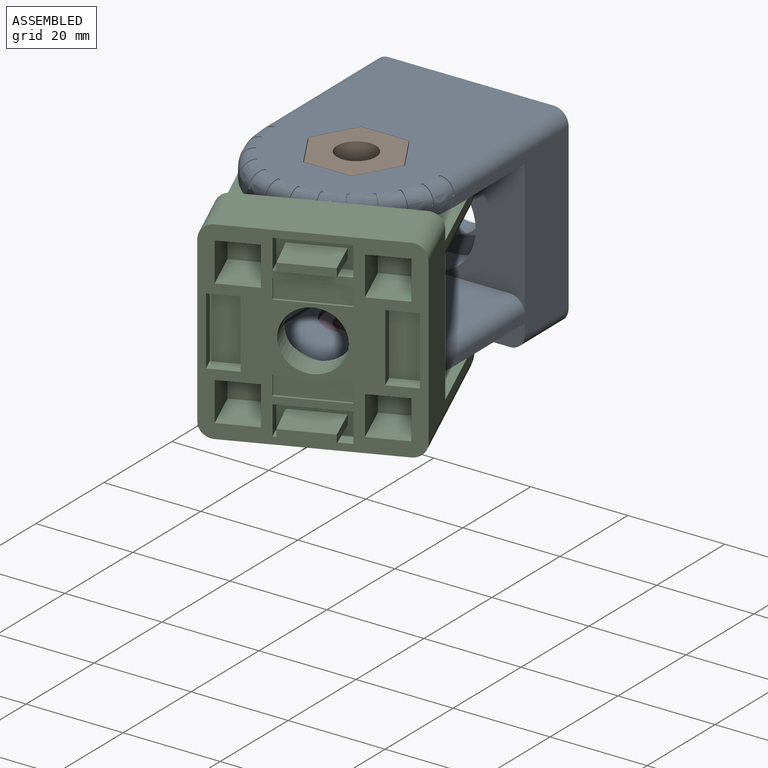
[diagram: assembled view]
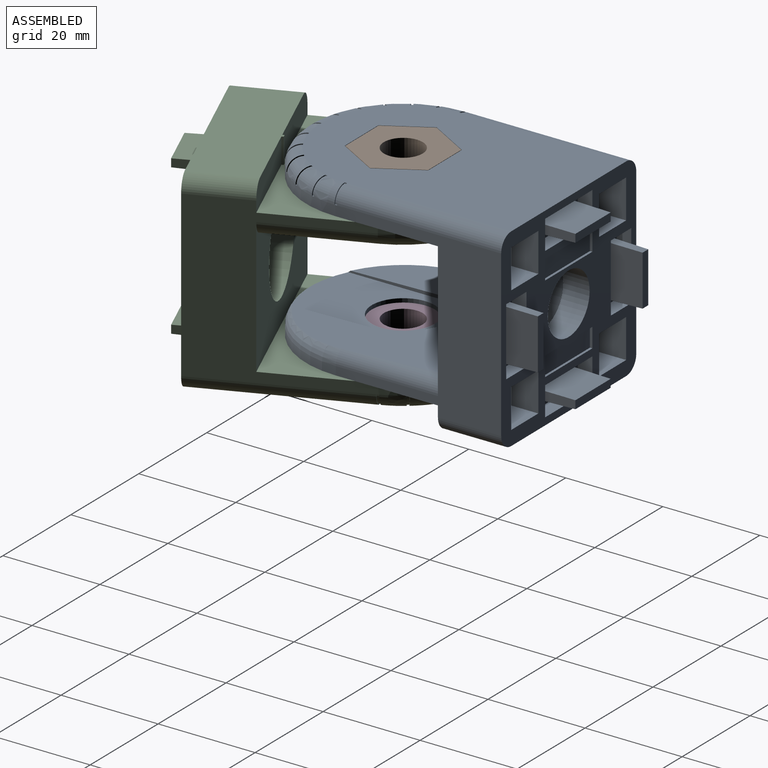
[diagram: assembled view, second angle]
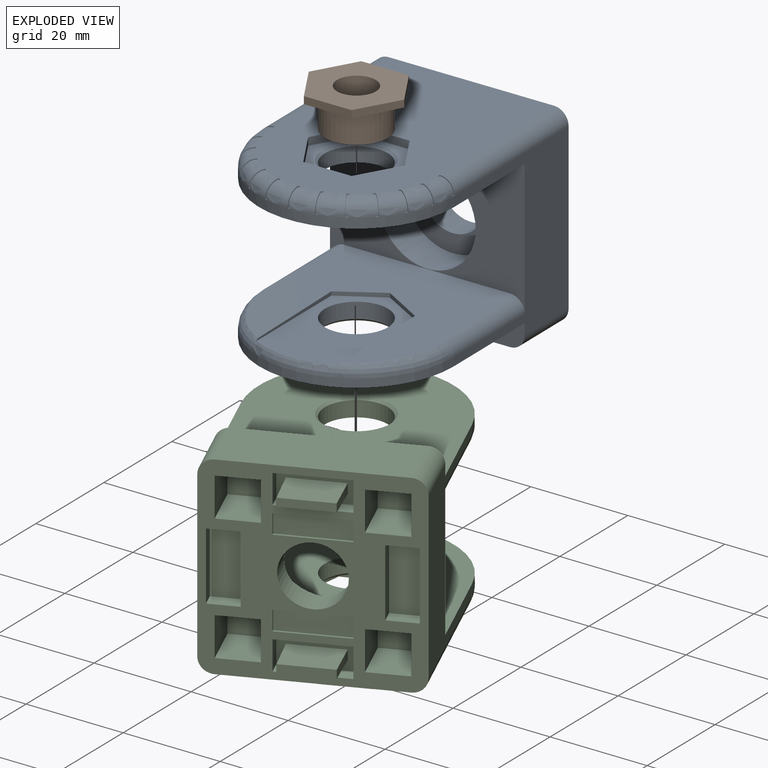
[diagram: exploded view]
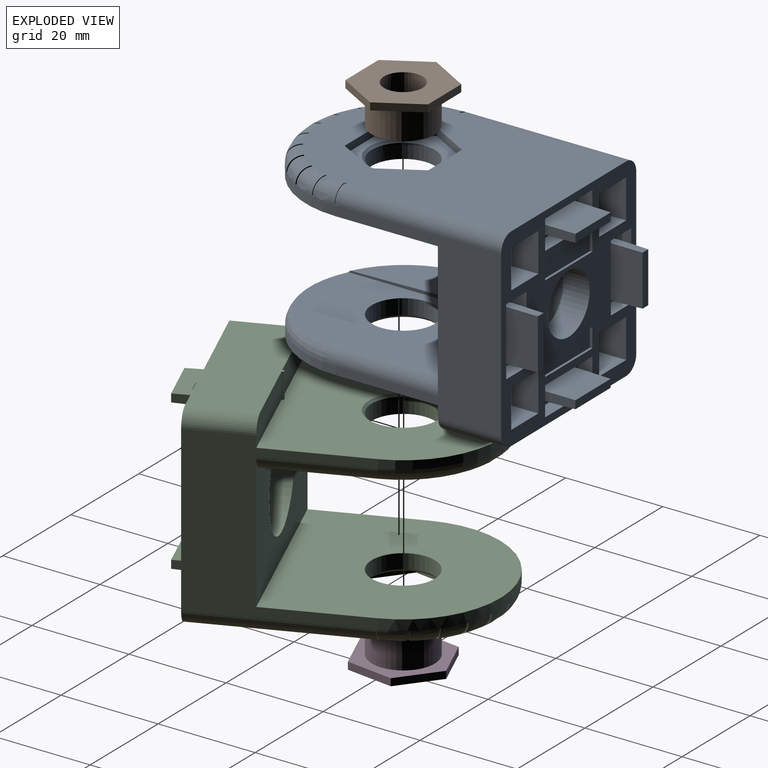
[diagram: exploded view, second angle]
ASSEMBLY  parts=4 mates=3
PART A: 189 faces, bbox 59.3x59.3x40.2 mm
  f0: plane 10.43x1.18mm, normal (0.71,-0.71,0), area 17.4mm2, adj f11,f12,f13,f14
  f1: plane 7.38x7.38mm, normal (0.71,-0.71,0), area 17.4mm2, adj f15,f16,f17,f18
  f2: plane 10.43x1.18mm, normal (0.71,-0.71,0), area 17.4mm2, adj f19,f20,f21,f22
  f3: plane 7.38x7.38mm, normal (0.71,-0.71,0), area 17.4mm2, adj f23,f24,f25,f26
  f4: plane 5.25x0.5mm, normal (-0.71,0.71,0), area 3.7mm2, adj f27,f28,f49,f126
  f5: cylinder r=6.5mm len=13mm, axis (0,0,1), area 130.7mm2, adj f6,f29
  f6: plane 27.87x27.87mm, normal (0,0,1), area 315.6mm2, adj f5,f7,f8,f9,f10,f30
  f7: plane 9.59x2.57mm, normal (-0.26,0.97,0), area 8.1mm2, adj f6,f8,f10,f32
  f8: plane 9.59x2.57mm, normal (-0.97,0.26,0), area 8.1mm2, adj f6,f7,f9,f32
  f9: plane 15.72x15.72mm, normal (-0.71,-0.71,0), area 12.7mm2, adj f6,f8,f30,f32
  f10: plane 15.72x15.72mm, normal (0.71,0.71,0), area 12.7mm2, adj f6,f7,f30,f32
  f11: plane 6.94x6.94mm, normal (0.01,-0.01,1), area 14.5mm2, adj f0,f12,f14,f41
  f12: plane 10.71x5.76mm, normal (-0.69,-0.72,0), area 84.6mm2, adj f0,f11,f13,f41
  f13: plane 6.94x6.94mm, normal (0.01,-0.01,-1), area 14.5mm2, adj f0,f12,f14,f41
  f14: plane 10.71x5.76mm, normal (0.72,0.69,0), area 84.6mm2, adj f0,f11,f13,f41
  f15: plane 5.76x5.56mm, normal (-0.69,-0.72,0), area 14.5mm2, adj f1,f16,f18,f42
  f16: plane 13.13x13.13mm, normal (0.01,-0.01,-1), area 84.6mm2, adj f1,f15,f17,f42
  f17: plane 5.76x5.56mm, normal (0.72,0.69,0), area 14.5mm2, adj f1,f16,f18,f42
  f18: plane 13.13x13.13mm, normal (0.01,-0.01,1), area 84.6mm2, adj f1,f15,f17,f42
  f19: plane 6.94x6.94mm, normal (0.01,-0.01,-1), area 14.5mm2, adj f2,f20,f22,f43
  f20: plane 10.71x5.76mm, normal (0.72,0.69,0), area 84.6mm2, adj f2,f19,f21,f43
  f21: plane 6.94x6.94mm, normal (0.01,-0.01,1), area 14.5mm2, adj f2,f20,f22,f43
  f22: plane 10.71x5.76mm, normal (-0.69,-0.72,0), area 84.6mm2, adj f2,f19,f21,f43
  f23: plane 5.76x5.56mm, normal (0.72,0.69,0), area 14.5mm2, adj f3,f24,f26,f44
  f24: plane 13.13x13.13mm, normal (0.01,-0.01,1), area 84.6mm2, adj f3,f23,f25,f44
  f25: plane 5.76x5.56mm, normal (-0.69,-0.72,0), area 14.5mm2, adj f3,f24,f26,f44
  f26: plane 13.13x13.13mm, normal (0.01,-0.01,-1), area 84.6mm2, adj f3,f23,f25,f44
  f27: plane 5.25x0.28mm, normal (-0.71,-0.71,0), area 2.1mm2, adj f4,f47,f49,f126
  f28: plane 5.25x0.28mm, normal (0.71,0.71,0), area 2.1mm2, adj f4,f48,f49,f126
  f29: cone r=7mm half-angle=45deg, axis (0,0,-1), area 30mm2, adj f5,f49
  f30: revolved ~34.14x34.14mm, area 166.3mm2, adj f6,f9,f10,f32,f46,f50,f51
  f31: cylinder r=9.93mm len=19.87mm, axis (-0.71,0.71,0), area 472.1mm2, adj f45,f52
  f32: plane 45.88x45.88mm, normal (-0.01,0.01,1), area 865.9mm2, adj f7,f8,f9,f10,f30,f46,f51,f52
  f33: cylinder r=6.5mm len=13mm, axis (0,0,-1), area 122.5mm2, adj f34,f66
  f34: cone r=7mm half-angle=45deg, axis (0,0,1), area 30mm2, adj f33,f80
  f35: plane 9.9x9.9mm, normal (0.71,-0.71,0), area 56mm2, adj f82,f83,f84,f85
  f36: plane 9.9x9.9mm, normal (0.71,-0.71,0), area 56mm2, adj f86,f87,f88,f89
  f37: plane 8x5.66mm, normal (0.71,-0.71,0), area 64mm2, adj f90,f91,f92,f93
  f38: plane 8x5.66mm, normal (0.71,-0.71,0), area 64mm2, adj f94,f95,f96,f97
  f39: plane 8x5.66mm, normal (0.71,-0.71,0), area 64mm2, adj f98,f99,f100,f101
  f40: plane 8x5.66mm, normal (0.71,-0.71,0), area 64mm2, adj f102,f103,f104,f105
  f41: plane 14x4.24mm, normal (0.71,-0.71,0), area 63.1mm2, adj f11,f12,f13,f14,f106,f107,f108,f109
  f42: plane 9.9x9.9mm, normal (0.71,-0.71,0), area 63.1mm2, adj f15,f16,f17,f18,f110,f111,f112,f113
  f43: plane 14x4.24mm, normal (0.71,-0.71,0), area 63.1mm2, adj f19,f20,f21,f22,f114,f115,f116,f117
  f44: plane 9.9x9.9mm, normal (0.71,-0.71,0), area 63.1mm2, adj f23,f24,f25,f26,f118,f119,f120,f121
  f45: plane 19.87x14.05mm, normal (-0.71,0.71,0), area 189.2mm2, adj f31,f122
  f46: cylinder r=3mm len=16.97mm, axis (-0.71,0.71,0), area 78.1mm2, adj f30,f32,f52,f124
  f47: plane 13.89x13.89mm, normal (-0.71,0.71,0), area 101.2mm2, adj f27,f49,f123,f124,f126
  f48: plane 13.89x13.89mm, normal (-0.71,0.71,0), area 101.2mm2, adj f28,f49,f125,f126,f128
  f49: plane 48.99x48.99mm, normal (0,0,-1), area 1314.1mm2, adj f4,f27,f28,f29,f47,f48,f50,f124
  f50: cylinder r=20mm len=34.14mm, axis (0,0,-1), area 110mm2, adj f30,f49,f124,f128
  f51: cylinder r=3mm len=16.97mm, axis (-0.71,0.71,0), area 78.1mm2, adj f30,f32,f52,f128
  f52: plane 28.28x28.28mm, normal (-0.71,0.71,0), area 689.8mm2, adj f31,f32,f46,f51,f66,f124,f128
  f53: cylinder r=2.8mm len=2.8mm, axis (0.71,-0.71,0), area 2.2mm2, adj f79,f127,f130,f164
  f54: cylinder r=2.8mm len=2.8mm, axis (0.87,-0.5,0), area 2.2mm2, adj f78,f129,f132,f166
  f55: cylinder r=2.8mm len=2.83mm, axis (0.97,-0.26,0), area 2.2mm2, adj f77,f131,f134,f168
  f56: cylinder r=2.8mm len=2.8mm, axis (1,0,0), area 2.2mm2, adj f76,f133,f136,f170
  f57: cylinder r=2.8mm len=2.83mm, axis (0.97,0.26,0), area 2.2mm2, adj f75,f135,f138,f172
  f58: cylinder r=2.8mm len=2.8mm, axis (0.87,0.5,0), area 2.2mm2, adj f74,f137,f140,f174
  f59: cylinder r=2.8mm len=2.8mm, axis (0.71,0.71,0), area 2.2mm2, adj f73,f139,f142,f176
  f60: cylinder r=2.8mm len=2.8mm, axis (0.5,0.87,0), area 2.2mm2, adj f72,f141,f144,f178
  f61: cylinder r=2.8mm len=2.83mm, axis (0.26,0.97,0), area 2.2mm2, adj f71,f143,f146,f180
  f62: cylinder r=2.8mm len=2.8mm, axis (0,1,0), area 2.2mm2, adj f70,f145,f148,f182
  f63: cylinder r=2.8mm len=2.83mm, axis (-0.26,0.97,0), area 2.2mm2, adj f69,f147,f150,f184
  f64: cylinder r=2.8mm len=2.8mm, axis (-0.71,0.71,0), area 2.2mm2, adj f67,f81,f151,f160
  f65: cylinder r=2.8mm len=2.8mm, axis (-0.5,0.87,0), area 2.2mm2, adj f68,f149,f152,f186
  f66: plane 48.99x48.99mm, normal (0,0,-1), area 1335.6mm2, adj f33,f52,f124,f128,f153
  f67: plane 0.5x0.49mm, normal (0,0,1), area 0.1mm2, adj f64,f81,f124,f151,f153
  f68: plane 0.53x0.42mm, normal (0,0,1), area 0.1mm2, adj f65,f149,f152,f153
  f69: plane 0.53x0.32mm, normal (0,0,1), area 0.1mm2, adj f63,f147,f150,f153
  f70: plane 0.5x0.2mm, normal (0,0,1), area 0.1mm2, adj f62,f145,f148,f153
  f71: plane 0.53x0.32mm, normal (0,0,1), area 0.1mm2, adj f61,f143,f146,f153
  f72: plane 0.53x0.42mm, normal (0,0,1), area 0.1mm2, adj f60,f141,f144,f153
  f73: plane 0.49x0.49mm, normal (0,0,1), area 0.1mm2, adj f59,f139,f142,f153
  f74: plane 0.53x0.42mm, normal (0,0,1), area 0.1mm2, adj f58,f137,f140,f153
  f75: plane 0.53x0.32mm, normal (0,0,1), area 0.1mm2, adj f57,f135,f138,f153
  f76: plane 0.5x0.2mm, normal (0,0,1), area 0.1mm2, adj f56,f133,f136,f153
  f77: plane 0.53x0.32mm, normal (0,0,1), area 0.1mm2, adj f55,f131,f134,f153
  f78: plane 0.53x0.42mm, normal (0,0,1), area 0.1mm2, adj f54,f129,f132,f153
  f79: plane 0.5x0.49mm, normal (0,0,1), area 0.1mm2, adj f53,f127,f128,f130,f153
  f80: plane 19.18x19.18mm, normal (0,0,1), area 102.3mm2, adj f34,f154,f155,f156,f157,f158,f159
  f81: plane 3x2.12mm, normal (-0.71,0.71,0), area 0.9mm2, adj f64,f67,f160,f161
  f82: plane 10.25x10.25mm, normal (0,0,1), area 7mm2, adj f35,f83,f85,f162
  f83: plane 4x0.35mm, normal (-0.71,-0.71,0), area 2mm2, adj f35,f82,f84,f162
  f84: plane 10.25x10.25mm, normal (0,0,-1), area 7mm2, adj f35,f83,f85,f162
  f85: plane 4x0.35mm, normal (0.71,0.71,0), area 2mm2, adj f35,f82,f84,f162
  f86: plane 10.25x10.25mm, normal (0,0,-1), area 7mm2, adj f36,f87,f89,f162
  f87: plane 4x0.35mm, normal (0.71,0.71,0), area 2mm2, adj f36,f86,f88,f162
  f88: plane 10.25x10.25mm, normal (0,0,1), area 7mm2, adj f36,f87,f89,f162
  f89: plane 4x0.35mm, normal (-0.71,-0.71,0), area 2mm2, adj f36,f86,f88,f162
  f90: plane 12.73x12.73mm, normal (0,0,-1), area 80mm2, adj f37,f91,f93,f162
  f91: plane 8x7.07mm, normal (0.71,0.71,0), area 80mm2, adj f37,f90,f92,f162
  f92: plane 12.73x12.73mm, normal (0,0,1), area 80mm2, adj f37,f91,f93,f162
  f93: plane 8x7.07mm, normal (-0.71,-0.71,0), area 80mm2, adj f37,f90,f92,f162
  f94: plane 12.73x12.73mm, normal (0,0,-1), area 80mm2, adj f38,f95,f97,f162
  f95: plane 8x7.07mm, normal (0.71,0.71,0), area 80mm2, adj f38,f94,f96,f162
  f96: plane 12.73x12.73mm, normal (0,0,1), area 80mm2, adj f38,f95,f97,f162
  f97: plane 8x7.07mm, normal (-0.71,-0.71,0), area 80mm2, adj f38,f94,f96,f162
  f98: plane 12.73x12.73mm, normal (0,0,-1), area 80mm2, adj f39,f99,f101,f162
  f99: plane 8x7.07mm, normal (0.71,0.71,0), area 80mm2, adj f39,f98,f100,f162
  f100: plane 12.73x12.73mm, normal (0,0,1), area 80mm2, adj f39,f99,f101,f162
  f101: plane 8x7.07mm, normal (-0.71,-0.71,0), area 80mm2, adj f39,f98,f100,f162
  f102: plane 12.73x12.73mm, normal (0,0,-1), area 80mm2, adj f40,f103,f105,f162
  f103: plane 8x7.07mm, normal (0.71,0.71,0), area 80mm2, adj f40,f102,f104,f162
  f104: plane 12.73x12.73mm, normal (0,0,1), area 80mm2, adj f40,f103,f105,f162
  f105: plane 8x7.07mm, normal (-0.71,-0.71,0), area 80mm2, adj f40,f102,f104,f162
  f106: plane 14x2.12mm, normal (0.71,0.71,0), area 42mm2, adj f41,f107,f109,f162
  f107: plane 6.36x6.36mm, normal (0,0,1), area 18mm2, adj f41,f106,f108,f162
  f108: plane 14x2.12mm, normal (-0.71,-0.71,0), area 42mm2, adj f41,f107,f109,f162
  f109: plane 6.36x6.36mm, normal (0,0,-1), area 18mm2, adj f41,f106,f108,f162
  f110: plane 12.02x12.02mm, normal (0,0,1), area 42mm2, adj f42,f111,f113,f162
  f111: plane 6x2.12mm, normal (-0.71,-0.71,0), area 18mm2, adj f42,f110,f112,f162
  f112: plane 12.02x12.02mm, normal (0,0,-1), area 42mm2, adj f42,f111,f113,f162
  f113: plane 6x2.12mm, normal (0.71,0.71,0), area 18mm2, adj f42,f110,f112,f162
  f114: plane 14x2.12mm, normal (-0.71,-0.71,0), area 42mm2, adj f43,f115,f117,f162
  f115: plane 6.36x6.36mm, normal (0,0,-1), area 18mm2, adj f43,f114,f116,f162
  f116: plane 14x2.12mm, normal (0.71,0.71,0), area 42mm2, adj f43,f115,f117,f162
  f117: plane 6.36x6.36mm, normal (0,0,1), area 18mm2, adj f43,f114,f116,f162
  f118: plane 12.02x12.02mm, normal (0,0,-1), area 42mm2, adj f44,f119,f121,f162
  f119: plane 6x2.12mm, normal (0.71,0.71,0), area 18mm2, adj f44,f118,f120,f162
  f120: plane 12.02x12.02mm, normal (0,0,1), area 42mm2, adj f44,f119,f121,f162
  f121: plane 6x2.12mm, normal (-0.71,-0.71,0), area 18mm2, adj f44,f118,f120,f162
  f122: cylinder r=6.2mm len=12.62mm, axis (-0.71,0.71,0), area 211.9mm2, adj f45,f162
  f123: cylinder r=3mm len=11.31mm, axis (-0.71,0.71,0), area 61.3mm2, adj f47,f124,f126,f162
  f124: plane 34x24.04mm, normal (-0.71,-0.71,0), area 522.8mm2, adj f46,f47,f49,f50,f52,f66,f67,f123
  f125: cylinder r=3mm len=11.31mm, axis (-0.71,0.71,0), area 61.3mm2, adj f48,f126,f128,f162
  f126: plane 33.23x33.23mm, normal (0,0,-1), area 442.3mm2, adj f4,f27,f28,f47,f48,f123,f125,f162
  f127: plane 3x2.12mm, normal (-0.71,0.71,0), area 0.9mm2, adj f53,f79,f163,f164
  f128: plane 34x24.04mm, normal (0.71,0.71,0), area 522.8mm2, adj f48,f49,f50,f51,f52,f66,f79,f125
  f129: plane 3.02x2.62mm, normal (-0.87,0.5,0), area 0.9mm2, adj f54,f78,f165,f166
  f130: plane 3.02x2.14mm, normal (0.71,-0.71,0), area 0.9mm2, adj f53,f79,f164,f165
  f131: plane 3.02x2.92mm, normal (-0.97,0.26,0), area 0.9mm2, adj f55,f77,f167,f168
  f132: plane 3.02x2.62mm, normal (0.87,-0.5,0), area 0.9mm2, adj f54,f78,f166,f167
  f133: plane 3.02x3.02mm, normal (-1,0,0), area 0.9mm2, adj f56,f76,f169,f170
  f134: plane 3.02x2.92mm, normal (0.97,-0.26,0), area 0.9mm2, adj f55,f77,f168,f169
  f135: plane 3.02x2.92mm, normal (-0.97,-0.26,0), area 0.9mm2, adj f57,f75,f171,f172
  f136: plane 3.02x3.02mm, normal (1,0,0), area 0.9mm2, adj f56,f76,f170,f171
  f137: plane 3.02x2.62mm, normal (-0.87,-0.5,0), area 0.9mm2, adj f58,f74,f173,f174
  f138: plane 3.02x2.92mm, normal (0.97,0.26,0), area 0.9mm2, adj f57,f75,f172,f173
  f139: plane 3.02x2.14mm, normal (-0.71,-0.71,0), area 0.9mm2, adj f59,f73,f175,f176
  f140: plane 3.02x2.62mm, normal (0.87,0.5,0), area 0.9mm2, adj f58,f74,f174,f175
  f141: plane 3.02x2.62mm, normal (-0.5,-0.87,0), area 0.9mm2, adj f60,f72,f177,f178
  f142: plane 3.02x2.14mm, normal (0.71,0.71,0), area 0.9mm2, adj f59,f73,f176,f177
  f143: plane 3.02x2.92mm, normal (-0.26,-0.97,0), area 0.9mm2, adj f61,f71,f179,f180
  f144: plane 3.02x2.62mm, normal (0.5,0.87,0), area 0.9mm2, adj f60,f72,f178,f179
  f145: plane 3.02x3.02mm, normal (0,-1,0), area 0.9mm2, adj f62,f70,f181,f182
  f146: plane 3.02x2.92mm, normal (0.26,0.97,0), area 0.9mm2, adj f61,f71,f180,f181
  f147: plane 3.02x2.92mm, normal (0.26,-0.97,0), area 0.9mm2, adj f63,f69,f183,f184
  f148: plane 3.02x3.02mm, normal (0,1,0), area 0.9mm2, adj f62,f70,f182,f183
  f149: plane 3.02x2.62mm, normal (0.5,-0.87,0), area 0.9mm2, adj f65,f68,f185,f186
  f150: plane 3.02x2.92mm, normal (-0.26,0.97,0), area 0.9mm2, adj f63,f69,f184,f185
  f151: plane 3.02x2.14mm, normal (0.71,-0.71,0), area 0.9mm2, adj f64,f67,f160,f187
  f152: plane 3.02x2.62mm, normal (-0.5,0.87,0), area 0.9mm2, adj f65,f68,f186,f187
  f153: cylinder r=20mm len=34.14mm, axis (0,0,-1), area 131.9mm2, adj f66,f67,f68,f69,f70,f71,f72,f73
  f154: plane 9.59x2.57mm, normal (-0.97,-0.26,0), area 15.9mm2, adj f80,f155,f159,f188
  f155: plane 7.02x7.02mm, normal (-0.71,0.71,0), area 15.9mm2, adj f80,f154,f156,f188
  f156: plane 9.59x2.57mm, normal (0.26,0.97,0), area 15.9mm2, adj f80,f155,f157,f188
  f157: plane 9.59x2.57mm, normal (0.97,0.26,0), area 15.9mm2, adj f80,f156,f158,f188
  f158: plane 7.02x7.02mm, normal (0.71,-0.71,0), area 15.9mm2, adj f80,f157,f159,f188
  f159: plane 9.59x2.57mm, normal (-0.26,-0.97,0), area 15.9mm2, adj f80,f154,f158,f188
  f160: plane 0.35x0.35mm, normal (-0.71,-0.71,0), area 0.1mm2, adj f64,f81,f151,f187,f188
  f161: cylinder r=3mm len=25.99mm, axis (-0.71,0.71,0), area 159mm2, adj f81,f124,f162,f188
  f162: plane 40x28.28mm, normal (0.71,-0.71,0), area 767.4mm2, adj f82,f83,f84,f85,f86,f87,f88,f89
  f163: cylinder r=3mm len=25.99mm, axis (-0.71,0.71,0), area 159mm2, adj f127,f128,f162,f188
  f164: plane 0.35x0.35mm, normal (0.71,0.71,0), area 0.1mm2, adj f53,f127,f130,f165,f188
  f165: revolved ~5.62x5.28mm, area 20.9mm2, adj f129,f130,f153,f164,f166,f188
  f166: plane 0.43x0.25mm, normal (0.5,0.87,0), area 0.1mm2, adj f54,f129,f132,f165,f167,f188
  f167: revolved ~5.57x4.59mm, area 20.9mm2, adj f131,f132,f153,f166,f168,f188
  f168: plane 0.48x0.2mm, normal (0.26,0.97,0), area 0.1mm2, adj f55,f131,f134,f167,f169,f188
  f169: revolved ~5.15x3.58mm, area 20.9mm2, adj f133,f134,f153,f168,f170,f188
  f170: plane 0.5x0.2mm, normal (0,1,0), area 0.1mm2, adj f56,f133,f136,f169,f171,f188
  f171: revolved ~5.15x3.58mm, area 20.9mm2, adj f135,f136,f153,f170,f172,f188
  f172: plane 0.48x0.2mm, normal (-0.26,0.97,0), area 0.1mm2, adj f57,f135,f138,f171,f173,f188
  f173: revolved ~5.57x4.59mm, area 20.9mm2, adj f137,f138,f153,f172,f174,f188
  f174: plane 0.43x0.25mm, normal (-0.5,0.87,0), area 0.1mm2, adj f58,f137,f140,f173,f175,f188
  f175: revolved ~5.62x5.28mm, area 20.9mm2, adj f139,f140,f153,f174,f176,f188
  f176: plane 0.35x0.35mm, normal (-0.71,0.71,0), area 0.1mm2, adj f59,f139,f142,f175,f177,f188
  f177: revolved ~5.62x5.28mm, area 20.9mm2, adj f141,f142,f153,f176,f178,f188
  f178: plane 0.43x0.25mm, normal (-0.87,0.5,0), area 0.1mm2, adj f60,f141,f144,f177,f179,f188
  f179: revolved ~5.57x4.59mm, area 20.9mm2, adj f143,f144,f153,f178,f180,f188
  f180: plane 0.48x0.2mm, normal (-0.97,0.26,0), area 0.1mm2, adj f61,f143,f146,f179,f181,f188
  f181: revolved ~5.15x3.58mm, area 20.9mm2, adj f145,f146,f153,f180,f182,f188
  f182: plane 0.5x0.2mm, normal (-1,0,0), area 0.1mm2, adj f62,f145,f148,f181,f183,f188
  f183: revolved ~5.15x3.58mm, area 20.9mm2, adj f147,f148,f153,f182,f184,f188
  f184: plane 0.48x0.2mm, normal (-0.97,-0.26,0), area 0.1mm2, adj f63,f147,f150,f183,f185,f188
  f185: revolved ~5.57x4.59mm, area 20.9mm2, adj f149,f150,f153,f184,f186,f188
  f186: plane 0.43x0.25mm, normal (-0.87,-0.5,0), area 0.1mm2, adj f65,f149,f152,f185,f187,f188
  f187: revolved ~5.62x5.28mm, area 20.9mm2, adj f151,f152,f153,f160,f186,f188
  f188: plane 53.07x53.07mm, normal (0,0,1), area 1353.8mm2, adj f154,f155,f156,f157,f158,f159,f160,f161
PART B: 11 faces, bbox 19x19x8 mm
  f0: cylinder r=6.5mm len=13mm, axis (0,0,-1), area 265.5mm2, adj f1,f2
  f1: plane 13x13mm, normal (0,0,-1), area 82.5mm2, adj f0,f3
  f2: plane 18.96x18.96mm, normal (0,0,-1), area 117.5mm2, adj f0,f4,f5,f6,f7,f8,f9
  f3: cylinder r=4mm len=8mm, axis (0,0,-1), area 201.1mm2, adj f1,f10
  f4: plane 9.48x2.54mm, normal (0.26,-0.97,0), area 14.7mm2, adj f2,f5,f9,f10
  f5: plane 6.94x6.94mm, normal (-0.71,-0.71,0), area 14.7mm2, adj f2,f4,f6,f10
  f6: plane 9.48x2.54mm, normal (-0.97,0.26,0), area 14.7mm2, adj f2,f5,f7,f10
  f7: plane 9.48x2.54mm, normal (-0.26,0.97,0), area 14.7mm2, adj f2,f6,f8,f10
  f8: plane 6.94x6.94mm, normal (0.71,0.71,0), area 14.7mm2, adj f2,f7,f9,f10
  f9: plane 9.48x2.54mm, normal (0.97,-0.26,0), area 14.7mm2, adj f2,f4,f8,f10
  f10: plane 18.96x18.96mm, normal (0,0,1), area 200mm2, adj f3,f4,f5,f6,f7,f8,f9
PART C: 179 faces, bbox 40.2x59.2x40.2 mm
  f0: plane 10.43x1.67mm, normal (0,1,0), area 17.4mm2, adj f9,f10,f11,f12
  f1: plane 10.43x1.67mm, normal (0,1,0), area 17.4mm2, adj f13,f14,f15,f16
  f2: plane 5.25x0.7mm, normal (0,-1,0), area 3.7mm2, adj f17,f18,f39,f116
  f3: cylinder r=6.5mm len=13mm, axis (0,0,-1), area 130.7mm2, adj f4,f19
  f4: plane 29.21x17.2mm, normal (0,0,-1), area 315.6mm2, adj f3,f5,f6,f7,f8,f20
  f5: plane 8.6x4.97mm, normal (0.5,-0.87,0), area 8.1mm2, adj f4,f6,f8,f22
  f6: plane 8.6x4.97mm, normal (-0.5,-0.87,0), area 8.1mm2, adj f4,f5,f7,f22
  f7: plane 22.23x0.78mm, normal (-1,0,0), area 12.7mm2, adj f4,f6,f20,f22
  f8: plane 22.23x0.78mm, normal (1,0,0), area 12.7mm2, adj f4,f5,f20,f22
  f9: plane 8x1.95mm, normal (-1,0.02,0), area 14.5mm2, adj f0,f10,f12,f32
  f10: plane 10.71x8mm, normal (0,0.02,1), area 84.6mm2, adj f0,f9,f11,f32
  f11: plane 8x1.95mm, normal (1,0.02,0), area 14.5mm2, adj f0,f10,f12,f32
  f12: plane 10.71x8mm, normal (0,0.02,-1), area 84.6mm2, adj f0,f9,f11,f32
  f13: plane 8x1.95mm, normal (1,0.02,0), area 14.5mm2, adj f1,f14,f16,f34
  f14: plane 10.71x8mm, normal (0,0.02,-1), area 84.6mm2, adj f1,f13,f15,f34
  f15: plane 8x1.95mm, normal (-1,0.02,0), area 14.5mm2, adj f1,f14,f16,f34
  f16: plane 10.71x8mm, normal (0,0.02,1), area 84.6mm2, adj f1,f13,f15,f34
  f17: plane 5.25x0.4mm, normal (-1,0,0), area 2.1mm2, adj f2,f37,f39,f116
  f18: plane 5.25x0.4mm, normal (1,0,0), area 2.1mm2, adj f2,f38,f39,f116
  f19: cone r=7mm half-angle=45deg, axis (0,0,1), area 30mm2, adj f3,f39
  f20: revolved ~40x20mm, area 166.3mm2, adj f4,f7,f8,f22,f36,f40,f41
  f21: cylinder r=9.93mm len=19.87mm, axis (0,-1,0), area 472.1mm2, adj f35,f42
  f22: plane 37.99x37.09mm, normal (0,-0.02,-1), area 865.9mm2, adj f5,f6,f7,f8,f20,f36,f41,f42
  f23: cylinder r=6.5mm len=13mm, axis (0,0,1), area 122.5mm2, adj f24,f56
  f24: cone r=7mm half-angle=45deg, axis (0,0,-1), area 30mm2, adj f23,f70
  f25: plane 14x4mm, normal (0,1,0), area 56mm2, adj f72,f73,f74,f75
  f26: plane 14x4mm, normal (0,1,0), area 56mm2, adj f76,f77,f78,f79
  f27: plane 8x8mm, normal (0,1,0), area 64mm2, adj f80,f81,f82,f83
  f28: plane 8x8mm, normal (0,1,0), area 64mm2, adj f84,f85,f86,f87
  f29: plane 8x8mm, normal (0,1,0), area 64mm2, adj f88,f89,f90,f91
  f30: plane 8x8mm, normal (0,1,0), area 64mm2, adj f92,f93,f94,f95
  f31: plane 14x6mm, normal (0,1,0), area 84mm2, adj f96,f97,f98,f99
  f32: plane 14x6mm, normal (0,1,0), area 63.1mm2, adj f9,f10,f11,f12,f100,f101,f102,f103
  f33: plane 14x6mm, normal (0,1,0), area 84mm2, adj f104,f105,f106,f107
  f34: plane 14x6mm, normal (0,1,0), area 63.1mm2, adj f13,f14,f15,f16,f108,f109,f110,f111
  f35: plane 19.87x19.87mm, normal (0,-1,0), area 189.2mm2, adj f21,f112
  f36: cylinder r=3mm len=21mm, axis (0,-1,0), area 78.1mm2, adj f20,f22,f42,f114
  f37: plane 19.65x5.25mm, normal (0,-1,0), area 101.2mm2, adj f17,f39,f113,f114,f116
  f38: plane 19.65x5.25mm, normal (0,-1,0), area 101.2mm2, adj f18,f39,f115,f116,f118
  f39: plane 41x40mm, normal (0,0,1), area 1314.1mm2, adj f2,f17,f18,f19,f37,f38,f40,f114
  f40: cylinder r=20mm len=40mm, axis (0,0,1), area 110mm2, adj f20,f39,f114,f118
  f41: cylinder r=3mm len=21mm, axis (0,-1,0), area 78.1mm2, adj f20,f22,f42,f118
  f42: plane 40x27.9mm, normal (0,-1,0), area 689.8mm2, adj f21,f22,f36,f41,f56,f114,f118
  f43: cylinder r=2.8mm len=2.8mm, axis (0,1,0), area 2.2mm2, adj f69,f117,f120,f154
  f44: cylinder r=2.8mm len=2.83mm, axis (0.26,0.97,0), area 2.2mm2, adj f68,f119,f122,f156
  f45: cylinder r=2.8mm len=2.8mm, axis (0.5,0.87,0), area 2.2mm2, adj f67,f121,f124,f158
  f46: cylinder r=2.8mm len=2.8mm, axis (0.71,0.71,0), area 2.2mm2, adj f66,f123,f126,f160
  f47: cylinder r=2.8mm len=2.8mm, axis (0.87,0.5,0), area 2.2mm2, adj f65,f125,f128,f162
  f48: cylinder r=2.8mm len=2.83mm, axis (0.97,0.26,0), area 2.2mm2, adj f64,f127,f130,f164
  f49: cylinder r=2.8mm len=2.8mm, axis (1,0,0), area 2.2mm2, adj f63,f129,f132,f166
  f50: cylinder r=2.8mm len=2.83mm, axis (0.97,-0.26,0), area 2.2mm2, adj f62,f131,f134,f168
  f51: cylinder r=2.8mm len=2.8mm, axis (0.87,-0.5,0), area 2.2mm2, adj f61,f133,f136,f170
  f52: cylinder r=2.8mm len=2.8mm, axis (0.71,-0.71,0), area 2.2mm2, adj f60,f135,f138,f172
  f53: cylinder r=2.8mm len=2.8mm, axis (0.5,-0.87,0), area 2.2mm2, adj f59,f137,f140,f174
  f54: cylinder r=2.8mm len=2.8mm, axis (0,-1,0), area 2.2mm2, adj f57,f71,f141,f150
  f55: cylinder r=2.8mm len=2.83mm, axis (0.26,-0.97,0), area 2.2mm2, adj f58,f139,f142,f176
  f56: plane 41x40mm, normal (0,0,1), area 1335.6mm2, adj f23,f42,f114,f118,f143
  f57: plane 0.5x0.2mm, normal (0,0,-1), area 0.1mm2, adj f54,f71,f114,f141,f143
  f58: plane 0.53x0.32mm, normal (0,0,-1), area 0.1mm2, adj f55,f139,f142,f143
  f59: plane 0.53x0.42mm, normal (0,0,-1), area 0.1mm2, adj f53,f137,f140,f143
  f60: plane 0.49x0.49mm, normal (0,0,-1), area 0.1mm2, adj f52,f135,f138,f143
  f61: plane 0.53x0.42mm, normal (0,0,-1), area 0.1mm2, adj f51,f133,f136,f143
  f62: plane 0.53x0.32mm, normal (0,0,-1), area 0.1mm2, adj f50,f131,f134,f143
  f63: plane 0.5x0.2mm, normal (0,0,-1), area 0.1mm2, adj f49,f129,f132,f143
  f64: plane 0.53x0.32mm, normal (0,0,-1), area 0.1mm2, adj f48,f127,f130,f143
  f65: plane 0.53x0.42mm, normal (0,0,-1), area 0.1mm2, adj f47,f125,f128,f143
  f66: plane 0.49x0.49mm, normal (0,0,-1), area 0.1mm2, adj f46,f123,f126,f143
  f67: plane 0.53x0.42mm, normal (0,0,-1), area 0.1mm2, adj f45,f121,f124,f143
  f68: plane 0.53x0.32mm, normal (0,0,-1), area 0.1mm2, adj f44,f119,f122,f143
  f69: plane 0.5x0.2mm, normal (0,0,-1), area 0.1mm2, adj f43,f117,f118,f120,f143
  f70: plane 19.86x17.2mm, normal (0,0,-1), area 102.3mm2, adj f24,f144,f145,f146,f147,f148,f149
  f71: plane 3x3mm, normal (0,-1,0), area 0.9mm2, adj f54,f57,f150,f151
  f72: plane 14x0.5mm, normal (0,0,-1), area 7mm2, adj f25,f73,f75,f152
  f73: plane 4x0.5mm, normal (-1,0,0), area 2mm2, adj f25,f72,f74,f152
  f74: plane 14x0.5mm, normal (0,0,1), area 7mm2, adj f25,f73,f75,f152
  f75: plane 4x0.5mm, normal (1,0,0), area 2mm2, adj f25,f72,f74,f152
  f76: plane 14x0.5mm, normal (0,0,1), area 7mm2, adj f26,f77,f79,f152
  f77: plane 4x0.5mm, normal (1,0,0), area 2mm2, adj f26,f76,f78,f152
  f78: plane 14x0.5mm, normal (0,0,-1), area 7mm2, adj f26,f77,f79,f152
  f79: plane 4x0.5mm, normal (-1,0,0), area 2mm2, adj f26,f76,f78,f152
  f80: plane 10x8mm, normal (0,0,1), area 80mm2, adj f27,f81,f83,f152
  f81: plane 10x8mm, normal (1,0,0), area 80mm2, adj f27,f80,f82,f152
  f82: plane 10x8mm, normal (0,0,-1), area 80mm2, adj f27,f81,f83,f152
  f83: plane 10x8mm, normal (-1,0,0), area 80mm2, adj f27,f80,f82,f152
  f84: plane 10x8mm, normal (0,0,1), area 80mm2, adj f28,f85,f87,f152
  f85: plane 10x8mm, normal (1,0,0), area 80mm2, adj f28,f84,f86,f152
  f86: plane 10x8mm, normal (0,0,-1), area 80mm2, adj f28,f85,f87,f152
  f87: plane 10x8mm, normal (-1,0,0), area 80mm2, adj f28,f84,f86,f152
  f88: plane 10x8mm, normal (0,0,1), area 80mm2, adj f29,f89,f91,f152
  f89: plane 10x8mm, normal (1,0,0), area 80mm2, adj f29,f88,f90,f152
  f90: plane 10x8mm, normal (0,0,-1), area 80mm2, adj f29,f89,f91,f152
  f91: plane 10x8mm, normal (-1,0,0), area 80mm2, adj f29,f88,f90,f152
  f92: plane 10x8mm, normal (0,0,1), area 80mm2, adj f30,f93,f95,f152
  f93: plane 10x8mm, normal (1,0,0), area 80mm2, adj f30,f92,f94,f152
  f94: plane 10x8mm, normal (0,0,-1), area 80mm2, adj f30,f93,f95,f152
  f95: plane 10x8mm, normal (-1,0,0), area 80mm2, adj f30,f92,f94,f152
  f96: plane 14x3mm, normal (1,0,0), area 42mm2, adj f31,f97,f99,f152
  f97: plane 6x3mm, normal (0,0,-1), area 18mm2, adj f31,f96,f98,f152
  f98: plane 14x3mm, normal (-1,0,0), area 42mm2, adj f31,f97,f99,f152
  f99: plane 6x3mm, normal (0,0,1), area 18mm2, adj f31,f96,f98,f152
  f100: plane 14x3mm, normal (0,0,-1), area 42mm2, adj f32,f101,f103,f152
  f101: plane 6x3mm, normal (-1,0,0), area 18mm2, adj f32,f100,f102,f152
  f102: plane 14x3mm, normal (0,0,1), area 42mm2, adj f32,f101,f103,f152
  f103: plane 6x3mm, normal (1,0,0), area 18mm2, adj f32,f100,f102,f152
  f104: plane 14x3mm, normal (-1,0,0), area 42mm2, adj f33,f105,f107,f152
  f105: plane 6x3mm, normal (0,0,1), area 18mm2, adj f33,f104,f106,f152
  f106: plane 14x3mm, normal (1,0,0), area 42mm2, adj f33,f105,f107,f152
  f107: plane 6x3mm, normal (0,0,-1), area 18mm2, adj f33,f104,f106,f152
  f108: plane 14x3mm, normal (0,0,1), area 42mm2, adj f34,f109,f111,f152
  f109: plane 6x3mm, normal (1,0,0), area 18mm2, adj f34,f108,f110,f152
  f110: plane 14x3mm, normal (0,0,-1), area 42mm2, adj f34,f109,f111,f152
  f111: plane 6x3mm, normal (-1,0,0), area 18mm2, adj f34,f108,f110,f152
  f112: cylinder r=6.2mm len=12.4mm, axis (0,-1,0), area 211.9mm2, adj f35,f152
  f113: cylinder r=3mm len=13mm, axis (0,-1,0), area 61.3mm2, adj f37,f114,f116,f152
  f114: plane 34x34mm, normal (-1,0,0), area 522.9mm2, adj f36,f37,f39,f40,f42,f56,f57,f113
  f115: cylinder r=3mm len=13mm, axis (0,-1,0), area 61.3mm2, adj f38,f116,f118,f152
  f116: plane 34x13.4mm, normal (0,0,1), area 442.3mm2, adj f2,f17,f18,f37,f38,f113,f115,f152
  f117: plane 3x3mm, normal (0,-1,0), area 0.9mm2, adj f43,f69,f153,f154
  f118: plane 34x34mm, normal (1,0,0), area 522.9mm2, adj f38,f39,f40,f41,f42,f56,f69,f115
  f119: plane 3.02x2.92mm, normal (-0.26,-0.97,0), area 0.9mm2, adj f44,f68,f155,f156
  f120: plane 3.02x3.02mm, normal (0,1,0), area 0.9mm2, adj f43,f69,f154,f155
  f121: plane 3.02x2.62mm, normal (-0.5,-0.87,0), area 0.9mm2, adj f45,f67,f157,f158
  f122: plane 3.02x2.92mm, normal (0.26,0.97,0), area 0.9mm2, adj f44,f68,f156,f157
  f123: plane 3.02x2.14mm, normal (-0.71,-0.71,0), area 0.9mm2, adj f46,f66,f159,f160
  f124: plane 3.02x2.62mm, normal (0.5,0.87,0), area 0.9mm2, adj f45,f67,f158,f159
  f125: plane 3.02x2.62mm, normal (-0.87,-0.5,0), area 0.9mm2, adj f47,f65,f161,f162
  f126: plane 3.02x2.14mm, normal (0.71,0.71,0), area 0.9mm2, adj f46,f66,f160,f161
  f127: plane 3.02x2.92mm, normal (-0.97,-0.26,0), area 0.9mm2, adj f48,f64,f163,f164
  f128: plane 3.02x2.62mm, normal (0.87,0.5,0), area 0.9mm2, adj f47,f65,f162,f163
  f129: plane 3.02x3.02mm, normal (-1,0,0), area 0.9mm2, adj f49,f63,f165,f166
  f130: plane 3.02x2.92mm, normal (0.97,0.26,0), area 0.9mm2, adj f48,f64,f164,f165
  f131: plane 3.02x2.92mm, normal (-0.97,0.26,0), area 0.9mm2, adj f50,f62,f167,f168
  f132: plane 3.02x3.02mm, normal (1,0,0), area 0.9mm2, adj f49,f63,f166,f167
  f133: plane 3.02x2.62mm, normal (-0.87,0.5,0), area 0.9mm2, adj f51,f61,f169,f170
  f134: plane 3.02x2.92mm, normal (0.97,-0.26,0), area 0.9mm2, adj f50,f62,f168,f169
  f135: plane 3.02x2.14mm, normal (-0.71,0.71,0), area 0.9mm2, adj f52,f60,f171,f172
  f136: plane 3.02x2.62mm, normal (0.87,-0.5,0), area 0.9mm2, adj f51,f61,f170,f171
  f137: plane 3.02x2.62mm, normal (-0.5,0.87,0), area 0.9mm2, adj f53,f59,f173,f174
  f138: plane 3.02x2.14mm, normal (0.71,-0.71,0), area 0.9mm2, adj f52,f60,f172,f173
  f139: plane 3.02x2.92mm, normal (-0.26,0.97,0), area 0.9mm2, adj f55,f58,f175,f176
  f140: plane 3.02x2.62mm, normal (0.5,-0.87,0), area 0.9mm2, adj f53,f59,f174,f175
  f141: plane 3.02x3.02mm, normal (0,1,0), area 0.9mm2, adj f54,f57,f150,f177
  f142: plane 3.02x2.92mm, normal (0.26,-0.97,0), area 0.9mm2, adj f55,f58,f176,f177
  f143: cylinder r=20mm len=40mm, axis (0,0,1), area 131.9mm2, adj f56,f57,f58,f59,f60,f61,f62,f63
  f144: plane 8.6x4.97mm, normal (-0.87,-0.5,0), area 15.9mm2, adj f70,f145,f149,f178
  f145: plane 9.93x1.6mm, normal (0,-1,0), area 15.9mm2, adj f70,f144,f146,f178
  f146: plane 8.6x4.97mm, normal (0.87,-0.5,0), area 15.9mm2, adj f70,f145,f147,f178
  f147: plane 8.6x4.97mm, normal (0.87,0.5,0), area 15.9mm2, adj f70,f146,f148,f178
  f148: plane 9.93x1.6mm, normal (0,1,0), area 15.9mm2, adj f70,f147,f149,f178
  f149: plane 8.6x4.97mm, normal (-0.87,0.5,0), area 15.9mm2, adj f70,f144,f148,f178
  f150: plane 0.5x0.2mm, normal (-1,0,0), area 0.1mm2, adj f54,f71,f141,f177,f178
  f151: cylinder r=3mm len=33.75mm, axis (0,-1,0), area 159mm2, adj f71,f114,f152,f178
  f152: plane 40x40mm, normal (0,1,0), area 767.4mm2, adj f72,f73,f74,f75,f76,f77,f78,f79
  f153: cylinder r=3mm len=33.75mm, axis (0,-1,0), area 159mm2, adj f117,f118,f152,f178
  f154: plane 0.5x0.2mm, normal (1,0,0), area 0.1mm2, adj f43,f117,f120,f155,f178
  f155: revolved ~5.15x3.58mm, area 20.9mm2, adj f119,f120,f143,f154,f156,f178
  f156: plane 0.48x0.2mm, normal (0.97,-0.26,0), area 0.1mm2, adj f44,f119,f122,f155,f157,f178
  f157: revolved ~5.57x4.59mm, area 20.9mm2, adj f121,f122,f143,f156,f158,f178
  f158: plane 0.43x0.25mm, normal (0.87,-0.5,0), area 0.1mm2, adj f45,f121,f124,f157,f159,f178
  f159: revolved ~5.62x5.28mm, area 20.9mm2, adj f123,f124,f143,f158,f160,f178
  f160: plane 0.35x0.35mm, normal (0.71,-0.71,0), area 0.1mm2, adj f46,f123,f126,f159,f161,f178
  f161: revolved ~5.62x5.28mm, area 20.9mm2, adj f125,f126,f143,f160,f162,f178
  f162: plane 0.43x0.25mm, normal (0.5,-0.87,0), area 0.1mm2, adj f47,f125,f128,f161,f163,f178
  f163: revolved ~5.57x4.59mm, area 20.9mm2, adj f127,f128,f143,f162,f164,f178
  f164: plane 0.48x0.2mm, normal (0.26,-0.97,0), area 0.1mm2, adj f48,f127,f130,f163,f165,f178
  f165: revolved ~5.15x3.58mm, area 20.9mm2, adj f129,f130,f143,f164,f166,f178
  f166: plane 0.5x0.2mm, normal (0,-1,0), area 0.1mm2, adj f49,f129,f132,f165,f167,f178
  f167: revolved ~5.15x3.58mm, area 20.9mm2, adj f131,f132,f143,f166,f168,f178
  f168: plane 0.48x0.2mm, normal (-0.26,-0.97,0), area 0.1mm2, adj f50,f131,f134,f167,f169,f178
  f169: revolved ~5.57x4.59mm, area 20.9mm2, adj f133,f134,f143,f168,f170,f178
  f170: plane 0.43x0.25mm, normal (-0.5,-0.87,0), area 0.1mm2, adj f51,f133,f136,f169,f171,f178
  f171: revolved ~5.62x5.28mm, area 20.9mm2, adj f135,f136,f143,f170,f172,f178
  f172: plane 0.35x0.35mm, normal (-0.71,-0.71,0), area 0.1mm2, adj f52,f135,f138,f171,f173,f178
  f173: revolved ~5.62x5.28mm, area 20.9mm2, adj f137,f138,f143,f172,f174,f178
  f174: plane 0.43x0.25mm, normal (-0.87,-0.5,0), area 0.1mm2, adj f53,f137,f140,f173,f175,f178
  f175: revolved ~5.57x4.59mm, area 20.9mm2, adj f139,f140,f143,f174,f176,f178
  f176: plane 0.48x0.2mm, normal (-0.97,-0.26,0), area 0.1mm2, adj f55,f139,f142,f175,f177,f178
  f177: revolved ~5.15x3.58mm, area 20.9mm2, adj f141,f142,f143,f150,f176,f178
  f178: plane 51x34mm, normal (0,0,-1), area 1353.8mm2, adj f144,f145,f146,f147,f148,f149,f150,f151
PART D: same geometry as B
PLACE A rot(axis=(0,0,1),135.2deg) t=(-25.08,-62.39,-1.1)mm
PLACE B rot(axis=(0,0,-1),134.8deg) t=(23.01,-62.19,28.45)mm
PLACE C rot(axis=(0,0,-1),157.5deg) t=(11.89,-69.66,-0.95)mm fixed
PLACE D rot(axis=(0.32,-0.95,0),180deg) t=(-21.84,-11.28,-30.5)mm
MATE revolute C.f3 <-> A.f33  axis (0,0,1) through (-1.13,-38.25,13.8)mm
MATE fastened B.f0 <-> A.f34  axis (0,0,1) through (-1.13,-38.25,18.9)mm
MATE fastened D.f0 <-> C.f23  axis (0,0,-1) through (-1.13,-38.25,-20.95)mm
